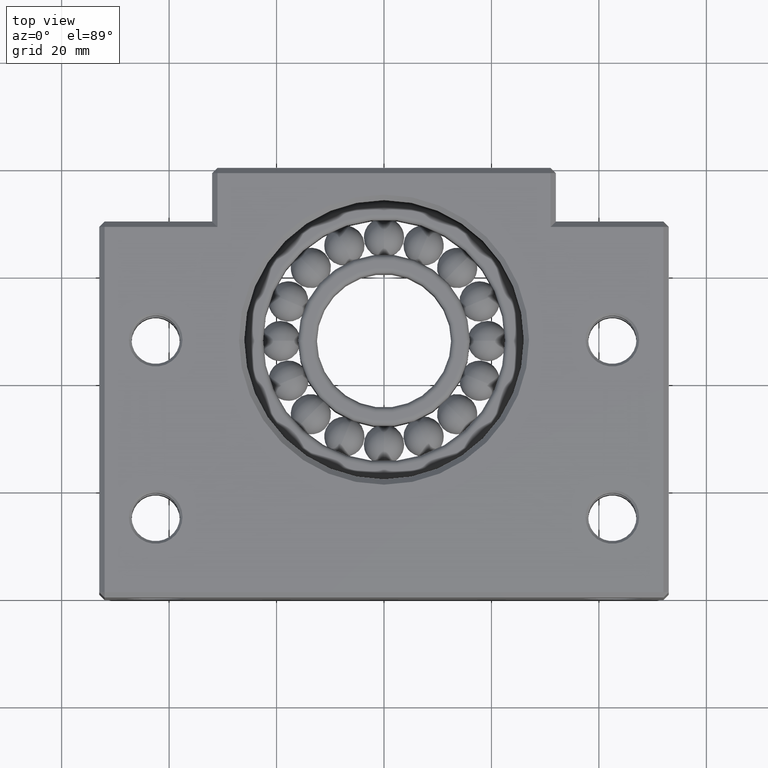
[diagram: clean part render]
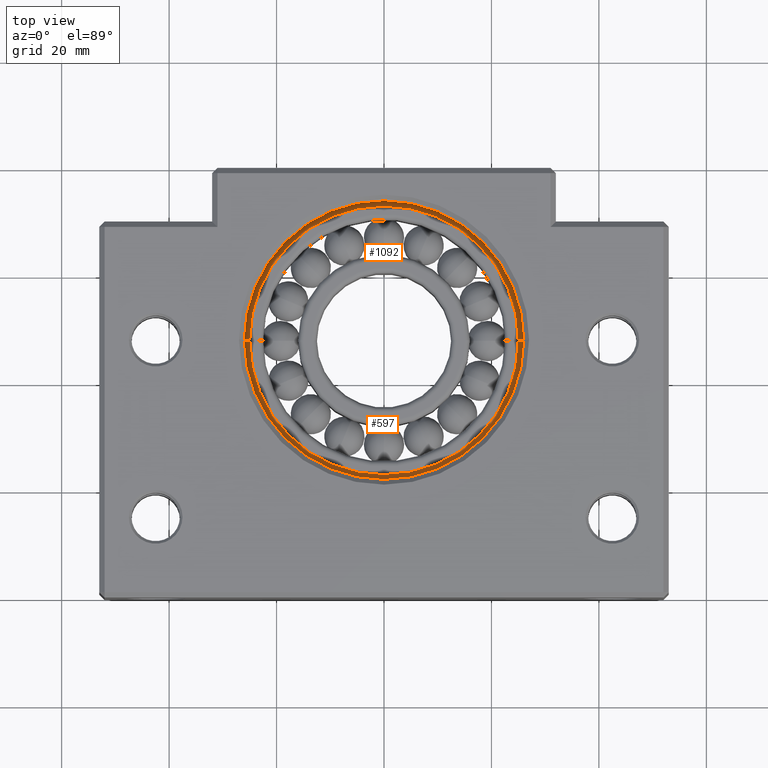
[diagram: same view with one multi-face feature highlighted, each face labeled with its STEP entity id]
A machine part, top view. The highlighted faces form ONE feature: a constant-radius fillet chain: 2 tangent blend faces with common blend radius 1 mm. The faces share edges in the B-rep.
Their STEP definitions:
[1] entity #597 (Torus):
#586 = ORIENTED_EDGE ( 'NONE', *, *, #587, .T. ) ;
#587 = EDGE_CURVE ( 'NONE', #1075, #1081, #2707, .T. ) ;
#589 = ORIENTED_EDGE ( 'NONE', *, *, #599, .T. ) ;
#592 = ORIENTED_EDGE ( 'NONE', *, *, #604, .F. ) ;
#596 = EDGE_LOOP ( 'NONE', ( #592, #586, #589, #618 ) ) ;
#597 = ADVANCED_FACE ( 'NONE', ( #2688 ), #2686, .T. ) ;
#599 = EDGE_CURVE ( 'NONE', #1081, #600, #2742, .T. ) ;
#600 = VERTEX_POINT ( 'NONE', #2737 ) ;
#604 = EDGE_CURVE ( 'NONE', #1075, #1059, #2731, .T. ) ;
#618 = ORIENTED_EDGE ( 'NONE', *, *, #623, .F. ) ;
#623 = EDGE_CURVE ( 'NONE', #1059, #600, #2755, .T. ) ;
#1059 = VERTEX_POINT ( 'NONE', #3470 ) ;
#1075 = VERTEX_POINT ( 'NONE', #3499 ) ;
#1081 = VERTEX_POINT ( 'NONE', #3492 ) ;
#2683 = DIRECTION ( 'NONE',  ( 1.000000000000000000, 0.0000000000000000000, 0.0000000000000000000 ) ) ;
#2684 = DIRECTION ( 'NONE',  ( -0.0000000000000000000, -0.0000000000000000000, 1.000000000000000000 ) ) ;
#2685 = AXIS2_PLACEMENT_3D ( 'NONE', #2687, #2684, #2683 ) ;
#2686 = TOROIDAL_SURFACE ( 'NONE', #2685, 24.99999999999999600, 1.000000000000000900 ) ;
#2687 = CARTESIAN_POINT ( 'NONE',  ( 1.124572892961660300E-014, 48.00000000000000000, 5.999999999999984900 ) ) ;
#2688 = FACE_OUTER_BOUND ( 'NONE', #596, .T. ) ;
#2702 = DIRECTION ( 'NONE',  ( 1.000000000000000000, 0.0000000000000000000, 0.0000000000000000000 ) ) ;
#2703 = DIRECTION ( 'NONE',  ( -0.0000000000000000000, -0.0000000000000000000, 1.000000000000000000 ) ) ;
#2705 = CARTESIAN_POINT ( 'NONE',  ( 1.124572892961660300E-014, 48.00000000000000000, 5.999999999999984900 ) ) ;
#2706 = AXIS2_PLACEMENT_3D ( 'NONE', #2705, #2703, #2702 ) ;
#2707 = CIRCLE ( 'NONE', #2706, 26.00000000000000000 ) ;
#2727 = DIRECTION ( 'NONE',  ( -1.000000000000000000, 0.0000000000000000000, 0.0000000000000000000 ) ) ;
#2728 = DIRECTION ( 'NONE',  ( 1.224606353822377300E-016, 1.000000000000000000, 0.0000000000000000000 ) ) ;
#2729 = CARTESIAN_POINT ( 'NONE',  ( -24.99999999999998600, 48.00000000000000000, 5.999999999999984900 ) ) ;
#2730 = AXIS2_PLACEMENT_3D ( 'NONE', #2729, #2728, #2727 ) ;
#2731 = CIRCLE ( 'NONE', #2730, 1.000000000000000900 ) ;
#2737 = CARTESIAN_POINT ( 'NONE',  ( 25.00000000000000400, 48.00000000000000000, 6.999999999999985800 ) ) ;
#2738 = DIRECTION ( 'NONE',  ( 0.0000000000000000000, 0.0000000000000000000, -1.000000000000000000 ) ) ;
#2739 = DIRECTION ( 'NONE',  ( 0.0000000000000000000, -1.000000000000000000, 0.0000000000000000000 ) ) ;
#2740 = CARTESIAN_POINT ( 'NONE',  ( 25.00000000000000700, 48.00000000000000000, 5.999999999999984900 ) ) ;
#2741 = AXIS2_PLACEMENT_3D ( 'NONE', #2740, #2739, #2738 ) ;
#2742 = CIRCLE ( 'NONE', #2741, 1.000000000000000900 ) ;
#2751 = DIRECTION ( 'NONE',  ( 1.000000000000000000, 0.0000000000000000000, 0.0000000000000000000 ) ) ;
#2752 = DIRECTION ( 'NONE',  ( -0.0000000000000000000, -0.0000000000000000000, 1.000000000000000000 ) ) ;
#2753 = CARTESIAN_POINT ( 'NONE',  ( 1.124572892961660300E-014, 48.00000000000000000, 6.999999999999985800 ) ) ;
#2754 = AXIS2_PLACEMENT_3D ( 'NONE', #2753, #2752, #2751 ) ;
#2755 = CIRCLE ( 'NONE', #2754, 24.99999999999999300 ) ;
#3470 = CARTESIAN_POINT ( 'NONE',  ( -24.99999999999998600, 48.00000000000000000, 6.999999999999985800 ) ) ;
#3492 = CARTESIAN_POINT ( 'NONE',  ( 26.00000000000001100, 48.00000000000000000, 5.999999999999984900 ) ) ;
#3499 = CARTESIAN_POINT ( 'NONE',  ( -25.99999999999998900, 48.00000000000000000, 5.999999999999984900 ) ) ;
[2] entity #1092 (Torus):
#599 = EDGE_CURVE ( 'NONE', #1081, #600, #2742, .T. ) ;
#600 = VERTEX_POINT ( 'NONE', #2737 ) ;
#601 = ORIENTED_EDGE ( 'NONE', *, *, #603, .F. ) ;
#602 = ORIENTED_EDGE ( 'NONE', *, *, #599, .F. ) ;
#603 = EDGE_CURVE ( 'NONE', #600, #1059, #2736, .T. ) ;
#604 = EDGE_CURVE ( 'NONE', #1075, #1059, #2731, .T. ) ;
#606 = ORIENTED_EDGE ( 'NONE', *, *, #604, .T. ) ;
#1059 = VERTEX_POINT ( 'NONE', #3470 ) ;
#1075 = VERTEX_POINT ( 'NONE', #3499 ) ;
#1078 = ORIENTED_EDGE ( 'NONE', *, *, #1082, .T. ) ;
#1081 = VERTEX_POINT ( 'NONE', #3492 ) ;
#1082 = EDGE_CURVE ( 'NONE', #1081, #1075, #3491, .T. ) ;
#1089 = EDGE_LOOP ( 'NONE', ( #1078, #606, #601, #602 ) ) ;
#1092 = ADVANCED_FACE ( 'NONE', ( #3539 ), #3534, .T. ) ;
#2727 = DIRECTION ( 'NONE',  ( -1.000000000000000000, 0.0000000000000000000, 0.0000000000000000000 ) ) ;
#2728 = DIRECTION ( 'NONE',  ( 1.224606353822377300E-016, 1.000000000000000000, 0.0000000000000000000 ) ) ;
#2729 = CARTESIAN_POINT ( 'NONE',  ( -24.99999999999998600, 48.00000000000000000, 5.999999999999984900 ) ) ;
#2730 = AXIS2_PLACEMENT_3D ( 'NONE', #2729, #2728, #2727 ) ;
#2731 = CIRCLE ( 'NONE', #2730, 1.000000000000000900 ) ;
#2732 = DIRECTION ( 'NONE',  ( 1.000000000000000000, 0.0000000000000000000, 0.0000000000000000000 ) ) ;
#2733 = DIRECTION ( 'NONE',  ( -0.0000000000000000000, -0.0000000000000000000, 1.000000000000000000 ) ) ;
#2734 = CARTESIAN_POINT ( 'NONE',  ( 1.124572892961660300E-014, 48.00000000000000000, 6.999999999999985800 ) ) ;
#2735 = AXIS2_PLACEMENT_3D ( 'NONE', #2734, #2733, #2732 ) ;
#2736 = CIRCLE ( 'NONE', #2735, 24.99999999999999300 ) ;
#2737 = CARTESIAN_POINT ( 'NONE',  ( 25.00000000000000400, 48.00000000000000000, 6.999999999999985800 ) ) ;
#2738 = DIRECTION ( 'NONE',  ( 0.0000000000000000000, 0.0000000000000000000, -1.000000000000000000 ) ) ;
#2739 = DIRECTION ( 'NONE',  ( 0.0000000000000000000, -1.000000000000000000, 0.0000000000000000000 ) ) ;
#2740 = CARTESIAN_POINT ( 'NONE',  ( 25.00000000000000700, 48.00000000000000000, 5.999999999999984900 ) ) ;
#2741 = AXIS2_PLACEMENT_3D ( 'NONE', #2740, #2739, #2738 ) ;
#2742 = CIRCLE ( 'NONE', #2741, 1.000000000000000900 ) ;
#3470 = CARTESIAN_POINT ( 'NONE',  ( -24.99999999999998600, 48.00000000000000000, 6.999999999999985800 ) ) ;
#3487 = DIRECTION ( 'NONE',  ( 1.000000000000000000, 0.0000000000000000000, 0.0000000000000000000 ) ) ;
#3488 = DIRECTION ( 'NONE',  ( -0.0000000000000000000, -0.0000000000000000000, 1.000000000000000000 ) ) ;
#3489 = CARTESIAN_POINT ( 'NONE',  ( 1.124572892961660300E-014, 48.00000000000000000, 5.999999999999984900 ) ) ;
#3490 = AXIS2_PLACEMENT_3D ( 'NONE', #3489, #3488, #3487 ) ;
#3491 = CIRCLE ( 'NONE', #3490, 26.00000000000000000 ) ;
#3492 = CARTESIAN_POINT ( 'NONE',  ( 26.00000000000001100, 48.00000000000000000, 5.999999999999984900 ) ) ;
#3499 = CARTESIAN_POINT ( 'NONE',  ( -25.99999999999998900, 48.00000000000000000, 5.999999999999984900 ) ) ;
#3529 = DIRECTION ( 'NONE',  ( 1.000000000000000000, 0.0000000000000000000, 0.0000000000000000000 ) ) ;
#3530 = DIRECTION ( 'NONE',  ( -0.0000000000000000000, -0.0000000000000000000, 1.000000000000000000 ) ) ;
#3531 = CARTESIAN_POINT ( 'NONE',  ( 1.124572892961660300E-014, 48.00000000000000000, 5.999999999999984900 ) ) ;
#3532 = AXIS2_PLACEMENT_3D ( 'NONE', #3531, #3530, #3529 ) ;
#3534 = TOROIDAL_SURFACE ( 'NONE', #3532, 24.99999999999999600, 1.000000000000000900 ) ;
#3539 = FACE_OUTER_BOUND ( 'NONE', #1089, .T. ) ;